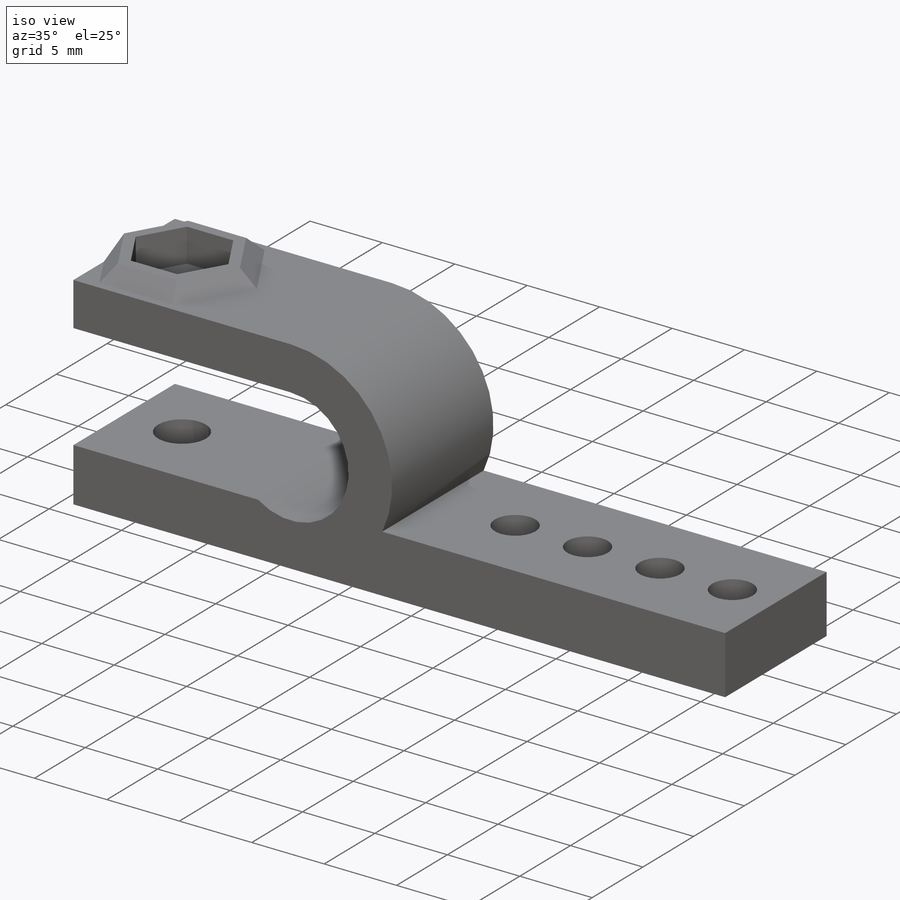
[diagram: iso view]
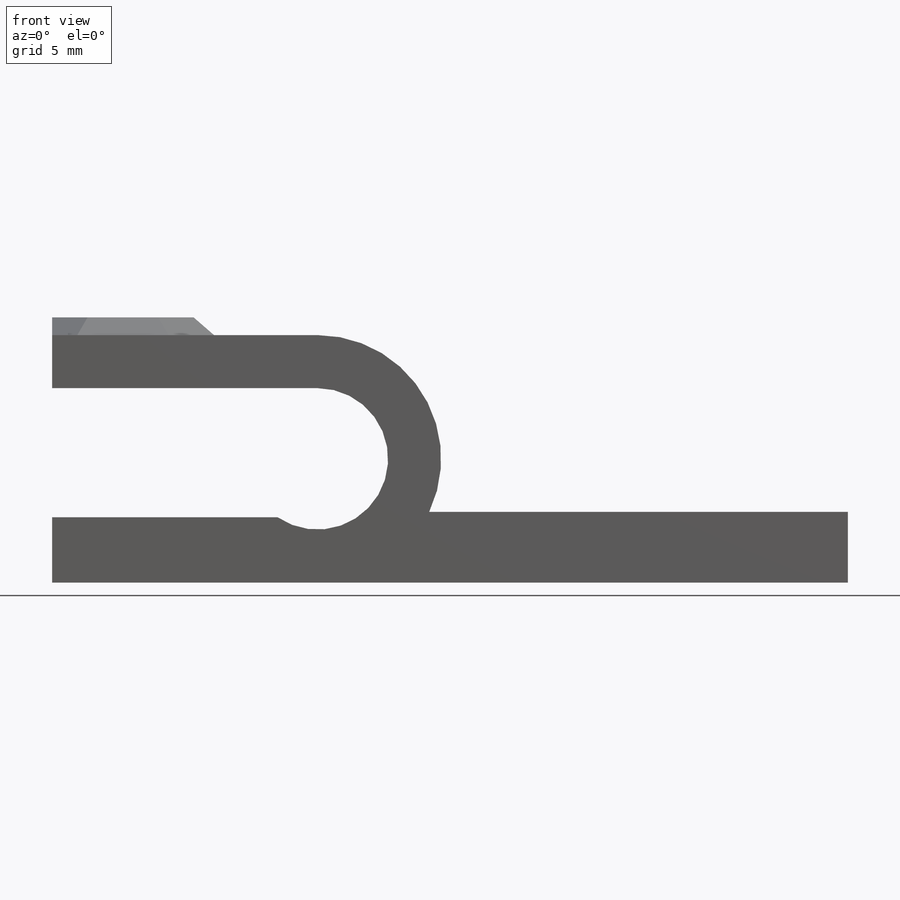
[diagram: front view]
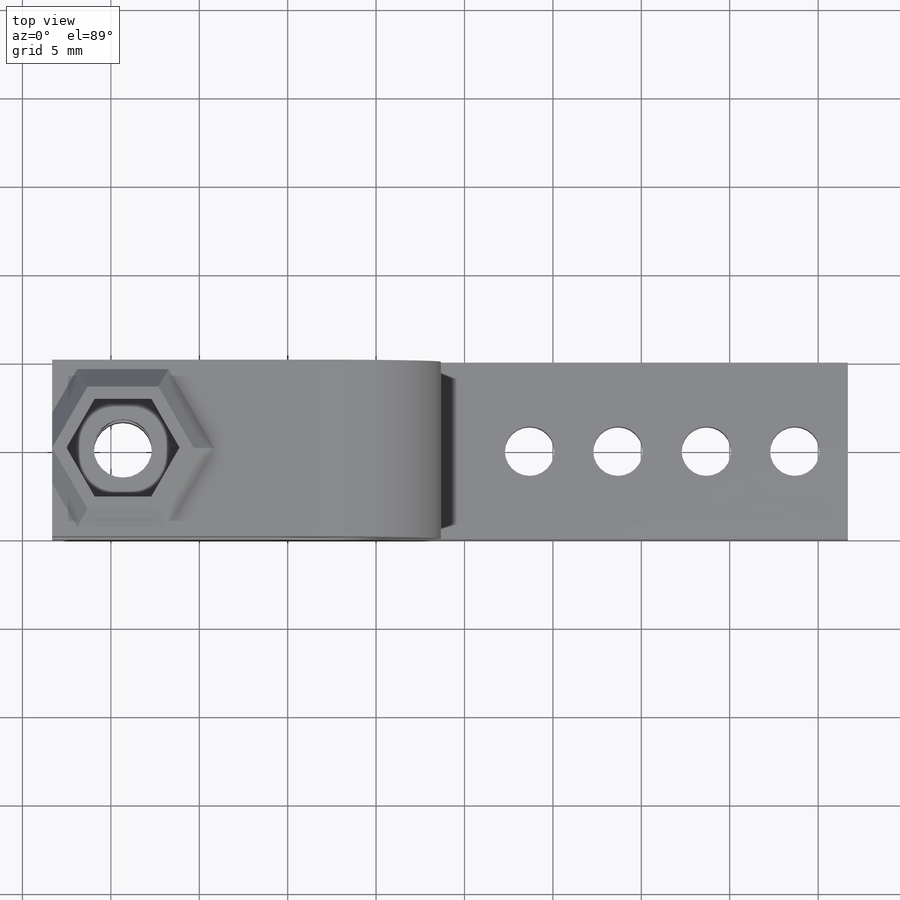
[diagram: top view]
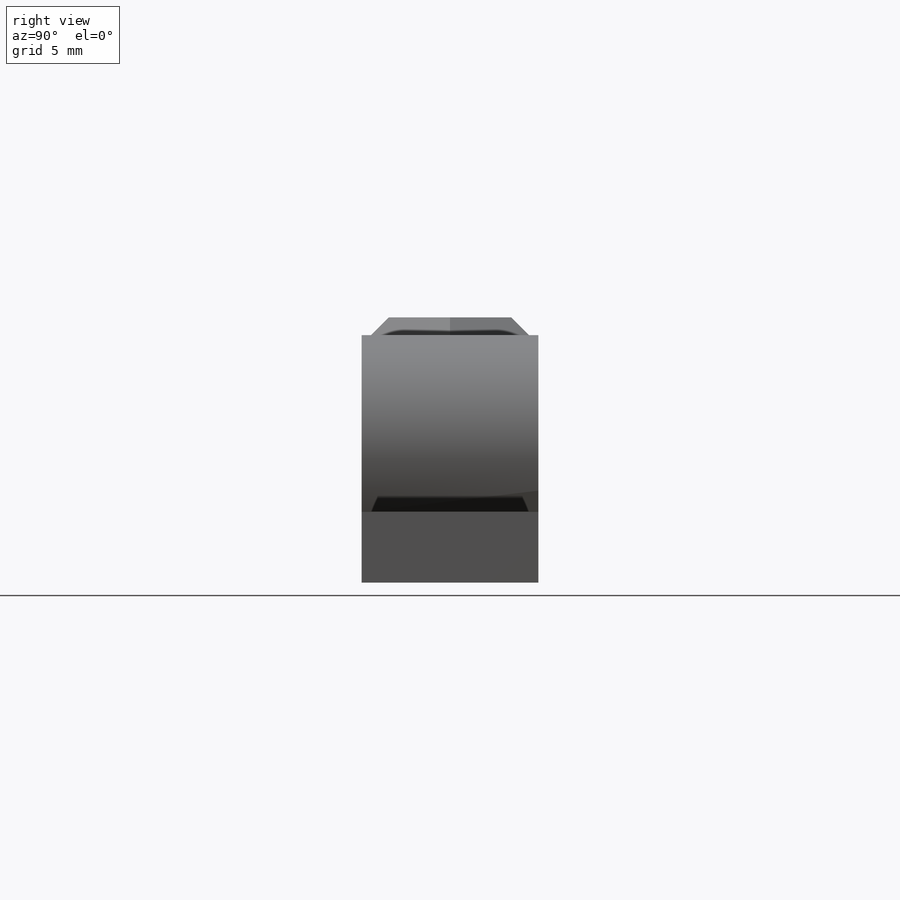
[diagram: right view]
SOLIDWORKS PART (.sldprt)
format: sldprt  version: not decoded by parser v0  size: 290,816 bytes
history: native  units: mm
features: sketch x8, cut_extrude x4, extrude x3, chamfer x2, material x1, plane x1 (+12 scaffold rows collapsed)
feature tree (31):
  scaffold x12  (default folders/planes/origin — collapsed)
  material  "Material <not specified>"
  sketch  "Sketch1"  dims[c1.D1=8.0mm c1.D2=14.0mm c1.D4=~3.920467mm c1.D3=7.3mm c2.D4=15.0mm c2.D5=15.0mm c2.D6=3.0mm c2.D7=15.0mm]
  extrude  "Boss-Extrude1"  Depth=10mm
  sketch  "Sketch2"  dims[c1.D1=3.3mm c1.D2=3.3mm c1.D3=3.3mm c2.D2=4.0mm c2.D3=5.0mm]
  cut_extrude  "Cut-Extrude1"  [1 undecoded]
  plane  "Plane1"
  sketch  "Sketch5"  dims[c1.D1=4.0mm c1.D2=~0.842124mm c2.D1=~6.157876mm c2.D2=44.0mm c3.D1=45.0mm]
  extrude  "Boss-Extrude2"  Depth=10mm
  sketch  "Sketch6"  dims[D1=0.0mm]
  sketch  "Sketch8"  dims[c1.D1=2.8mm c1.D2=2.8mm c1.D3=2.8mm c1.D4=2.8mm c1.D5=2.8mm c2.D3=2.8mm c2.D4=2.8mm c2.D6=2.8mm c2.D7=2.8mm c2.D8=2.8mm c2.D9=2.8mm c3.D3=5.0mm c3.D4=5.0mm c3.D5=10.0mm c4.D3=5.0mm c4.D4=27.0mm c4.D8=10.0mm c4.D9=5.0mm]
  cut_extrude  "Cut-Extrude3"  Depth=10mm
  sketch  "Sketch9"
  cut_extrude  "Cut-Extrude4"  [1 undecoded]
  sketch  "Sketch10"  dims[D1=6.4mm]
  extrude  "Boss-Extrude3"  Depth=1mm
  sketch  "Sketch11"  dims[D1=0.0mm]
  cut_extrude  "Cut-Extrude5"  Depth=1.3mm
  chamfer  "Chamfer2"  Distance=1mm Angle=45deg
  chamfer  "Chamfer3"  Distance=1mm Angle=45deg
decode coverage: 14 of 17 modeling features carry decoded parameters
note: ~ marks probable driven/reference dimensions
note: 2 parameter values undecoded
note: suppression state not decoded; provenance and decode notes live in map.json
